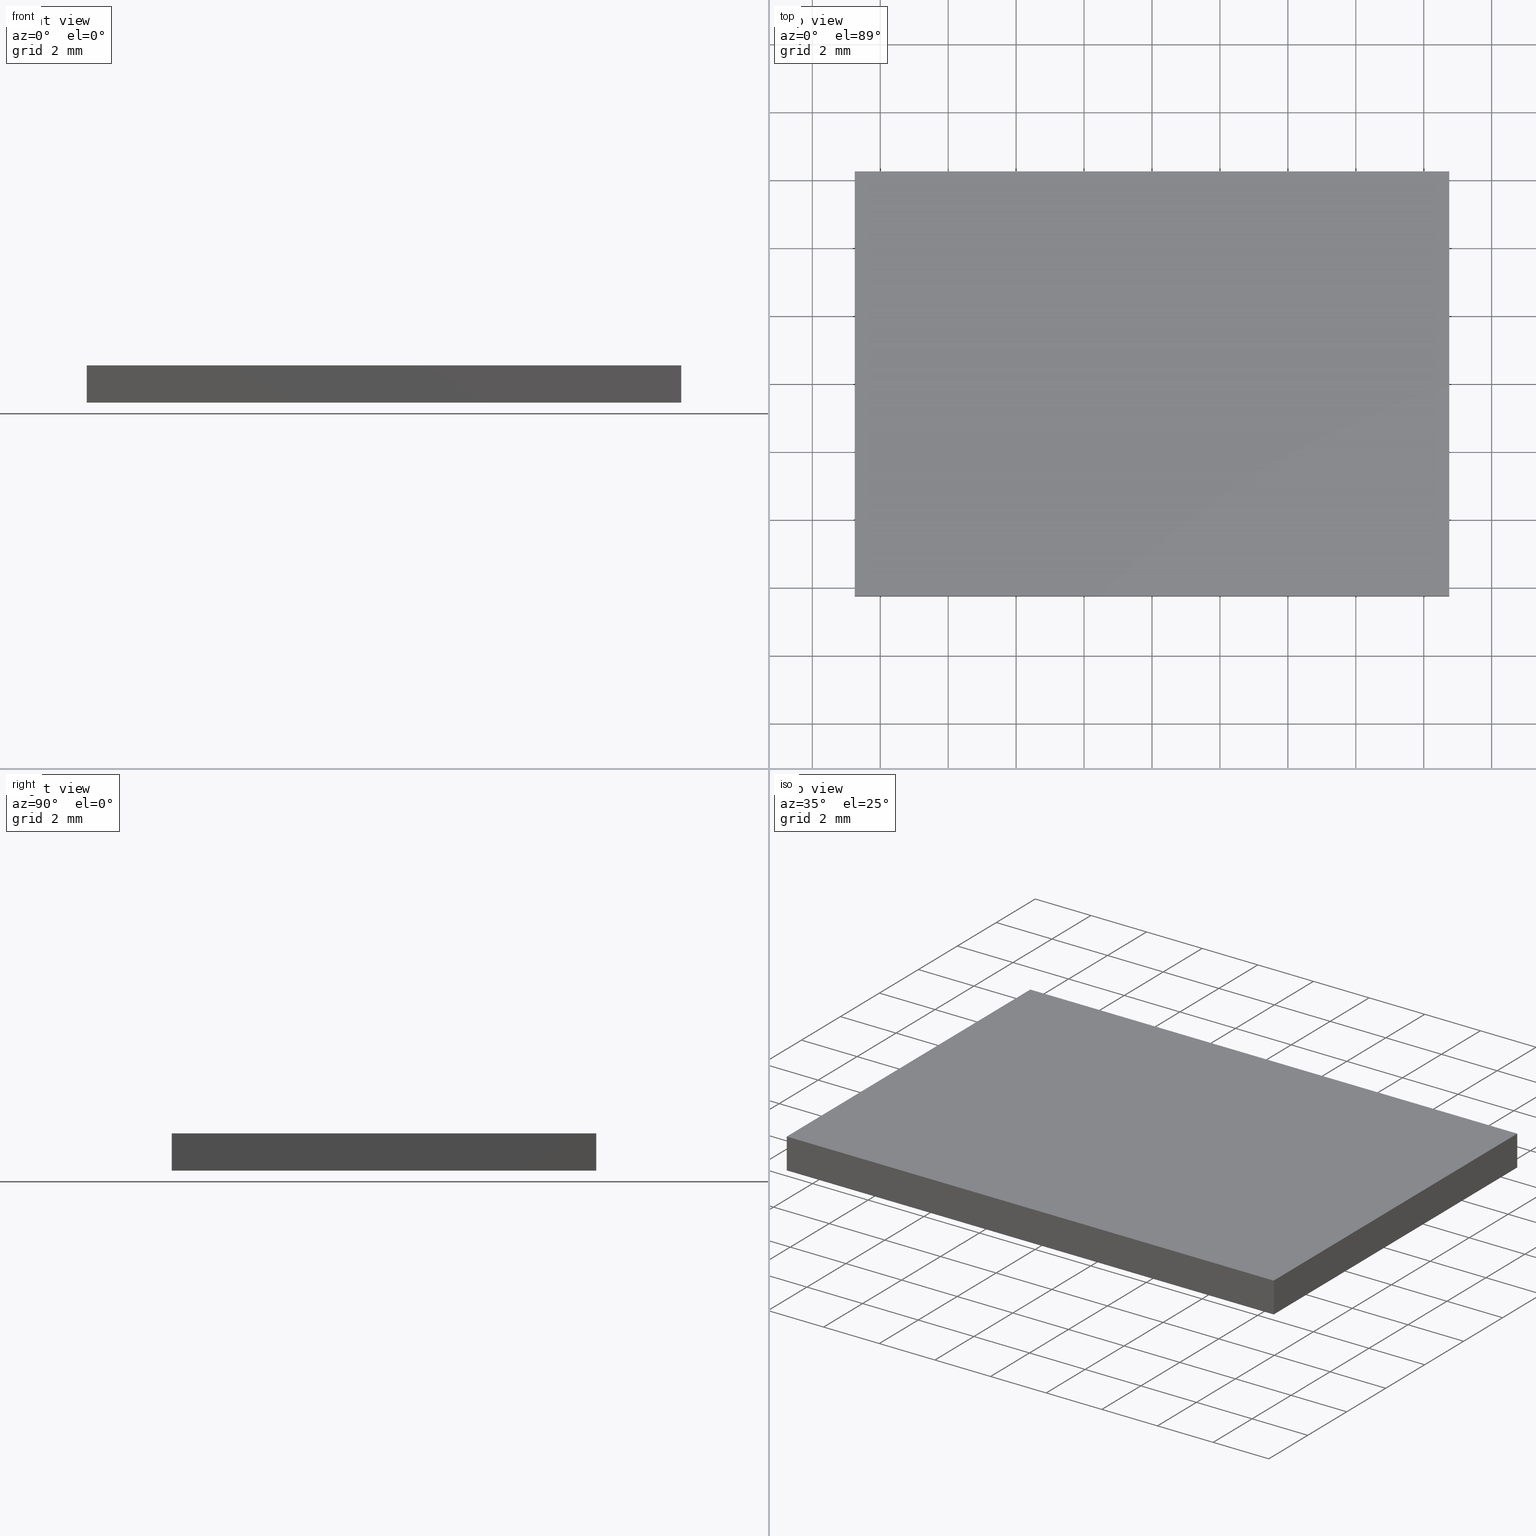
[diagram: canonical four-view strip — front | top / right | iso, engineering-drawing reading convention]
A machine part, canonical four-view strip (front | top / right | iso — engineering-drawing reading convention). The complete STEP part file that produces these views, byte-faithful:
ISO-10303-21;
HEADER;
FILE_DESCRIPTION (( 'STEP AP203' ),
    '1' );
FILE_NAME ('348502.STEP',
    '2019-07-31T07:06:59',
    ( '' ),
    ( '' ),
    'SwSTEP 2.0',
    'SolidWorks 2016',
    '' );
FILE_SCHEMA (( 'CONFIG_CONTROL_DESIGN' ));
ENDSEC;

DATA;
#1 = LOCAL_TIME ( 15, 6, 59.00000000000000000, #28 ) ;
#2 = APPLICATION_CONTEXT ( 'configuration controlled 3d designs of mechanical parts and assemblies' ) ;
#3 = CALENDAR_DATE ( 2019, 31, 7 ) ;
#4 = ADVANCED_BREP_SHAPE_REPRESENTATION ( '348502', ( #142, #102 ), #283 ) ;
#5 = PERSON_AND_ORGANIZATION ( #170, #246 ) ;
#6 = EDGE_LOOP ( 'NONE', ( #122, #305, #184, #26 ) ) ;
#7 = PRODUCT_DEFINITION_SHAPE ( 'NONE', 'NONE',  #271 ) ;
#8 = CC_DESIGN_PERSON_AND_ORGANIZATION_ASSIGNMENT ( #222, #51, ( #202 ) ) ;
#9 = ADVANCED_FACE ( 'NONE', ( #265 ), #219, .F. ) ;
#10 = APPROVAL_DATE_TIME ( #190, #103 ) ;
#11 = CARTESIAN_POINT ( 'NONE',  ( -8.750000000000000000, -6.249999999999999100, 0.0000000000000000000 ) ) ;
#12 = CC_DESIGN_PERSON_AND_ORGANIZATION_ASSIGNMENT ( #5, #118, ( #271 ) ) ;
#13 = DIRECTION ( 'NONE',  ( 0.0000000000000000000, 1.000000000000000000, 0.0000000000000000000 ) ) ;
#14 = SHAPE_DEFINITION_REPRESENTATION ( #188, #4 ) ;
#15 = FACE_OUTER_BOUND ( 'NONE', #6, .T. ) ;
#16 = CC_DESIGN_SECURITY_CLASSIFICATION ( #202, ( #111 ) ) ;
#17 = CARTESIAN_POINT ( 'NONE',  ( -8.750000000000000000, -6.249999999999999100, 1.100000000000000100 ) ) ;
#18 = ORIENTED_EDGE ( 'NONE', *, *, #124, .T. ) ;
#19 = DIRECTION ( 'NONE',  ( 0.0000000000000000000, 0.0000000000000000000, -1.000000000000000000 ) ) ;
#20 = CARTESIAN_POINT ( 'NONE',  ( 8.750000000000000000, -6.249999999999999100, 1.100000000000000100 ) ) ;
#21 = LOCAL_TIME ( 15, 6, 59.00000000000000000, #31 ) ;
#22 = VERTEX_POINT ( 'NONE', #11 ) ;
#23 = APPLICATION_CONTEXT ( 'configuration controlled 3d designs of mechanical parts and assemblies' ) ;
#24 = CC_DESIGN_APPROVAL ( #125, ( #111 ) ) ;
#25 = VECTOR ( 'NONE', #280, 1000.000000000000000 ) ;
#26 = ORIENTED_EDGE ( 'NONE', *, *, #237, .T. ) ;
#27 = SECURITY_CLASSIFICATION_LEVEL ( 'unclassified' ) ;
#28 = COORDINATED_UNIVERSAL_TIME_OFFSET ( 8, 0, .AHEAD. ) ;
#29 = PERSON_AND_ORGANIZATION ( #170, #246 ) ;
#30 = DIRECTION ( 'NONE',  ( -1.000000000000000000, -0.0000000000000000000, -0.0000000000000000000 ) ) ;
#31 = COORDINATED_UNIVERSAL_TIME_OFFSET ( 8, 0, .AHEAD. ) ;
#32 = UNCERTAINTY_MEASURE_WITH_UNIT (LENGTH_MEASURE( 1.000000000000000100E-005 ), #49, 'distance_accuracy_value', 'NONE');
#33 = VECTOR ( 'NONE', #161, 1000.000000000000000 ) ;
#34 = ORIENTED_EDGE ( 'NONE', *, *, #290, .T. ) ;
#35 = CC_DESIGN_PERSON_AND_ORGANIZATION_ASSIGNMENT ( #65, #282, ( #287 ) ) ;
#36 = AXIS2_PLACEMENT_3D ( 'NONE', #17, #164, #180 ) ;
#37 = APPROVAL_DATE_TIME ( #45, #175 ) ;
#38 = PERSON_AND_ORGANIZATION ( #170, #246 ) ;
#39 = DIRECTION ( 'NONE',  ( -1.000000000000000000, 0.0000000000000000000, 0.0000000000000000000 ) ) ;
#40 = DIRECTION ( 'NONE',  ( 1.000000000000000000, 0.0000000000000000000, 0.0000000000000000000 ) ) ;
#41 = DIRECTION ( 'NONE',  ( -1.000000000000000000, 0.0000000000000000000, -0.0000000000000000000 ) ) ;
#42 = ORIENTED_EDGE ( 'NONE', *, *, #106, .F. ) ;
#43 = AXIS2_PLACEMENT_3D ( 'NONE', #194, #108, #41 ) ;
#44 =( NAMED_UNIT ( * ) PLANE_ANGLE_UNIT ( ) SI_UNIT ( $, .RADIAN. ) );
#45 = DATE_AND_TIME ( #71, #182 ) ;
#46 = EDGE_CURVE ( 'NONE', #99, #296, #201, .T. ) ;
#47 = DIRECTION ( 'NONE',  ( -0.0000000000000000000, -0.0000000000000000000, -1.000000000000000000 ) ) ;
#48 = ORIENTED_EDGE ( 'NONE', *, *, #124, .F. ) ;
#49 =( LENGTH_UNIT ( ) NAMED_UNIT ( * ) SI_UNIT ( .MILLI., .METRE. ) );
#50 = CALENDAR_DATE ( 2019, 31, 7 ) ;
#51 = PERSON_AND_ORGANIZATION_ROLE ( 'classification_officer' ) ;
#52 = APPROVAL_STATUS ( 'not_yet_approved' ) ;
#53 = APPROVAL_ROLE ( '' ) ;
#54 = CALENDAR_DATE ( 2019, 31, 7 ) ;
#55 = CLOSED_SHELL ( 'NONE', ( #9, #76, #226, #248, #297, #85 ) ) ;
#56 = EDGE_CURVE ( 'NONE', #22, #99, #220, .T. ) ;
#57 = APPROVAL_PERSON_ORGANIZATION ( #117, #75, #171 ) ;
#58 = AXIS2_PLACEMENT_3D ( 'NONE', #183, #67, #121 ) ;
#59 = DATE_AND_TIME ( #54, #1 ) ;
#60 = APPROVAL_DATE_TIME ( #300, #302 ) ;
#61 = CARTESIAN_POINT ( 'NONE',  ( 8.750000000000000000, -6.249999999999999100, 0.0000000000000000000 ) ) ;
#62 = PLANE ( 'NONE',  #36 ) ;
#63 = LINE ( 'NONE', #78, #126 ) ;
#64 = DIRECTION ( 'NONE',  ( 1.000000000000000000, 0.0000000000000000000, 0.0000000000000000000 ) ) ;
#65 = PERSON_AND_ORGANIZATION ( #170, #246 ) ;
#66 = EDGE_CURVE ( 'NONE', #249, #173, #63, .T. ) ;
#67 = DIRECTION ( 'NONE',  ( 0.0000000000000000000, 0.0000000000000000000, 1.000000000000000000 ) ) ;
#68 = SECURITY_CLASSIFICATION_LEVEL ( 'unclassified' ) ;
#69 = APPROVAL_ROLE ( '' ) ;
#70 = EDGE_CURVE ( 'NONE', #249, #296, #236, .T. ) ;
#71 = CALENDAR_DATE ( 2019, 31, 7 ) ;
#72 = PERSON_AND_ORGANIZATION ( #170, #246 ) ;
#73 = CALENDAR_DATE ( 2019, 31, 7 ) ;
#74 = VECTOR ( 'NONE', #80, 1000.000000000000000 ) ;
#75 = APPROVAL ( #214, 'δָ��' ) ;
#76 = ADVANCED_FACE ( 'NONE', ( #261 ), #299, .F. ) ;
#77 = COORDINATED_UNIVERSAL_TIME_OFFSET ( 8, 0, .AHEAD. ) ;
#78 = CARTESIAN_POINT ( 'NONE',  ( -8.750000000000000000, 6.250000000000000900, 1.100000000000000100 ) ) ;
#79 = DESIGN_CONTEXT ( 'detailed design', #289, 'design' ) ;
#80 = DIRECTION ( 'NONE',  ( -0.0000000000000000000, -1.000000000000000000, -0.0000000000000000000 ) ) ;
#81 = CC_DESIGN_SECURITY_CLASSIFICATION ( #240, ( #287 ) ) ;
#82 = PERSON_AND_ORGANIZATION ( #170, #246 ) ;
#83 = CARTESIAN_POINT ( 'NONE',  ( -8.750000000000000000, -6.249999999999999100, 1.100000000000000100 ) ) ;
#84 = ORIENTED_EDGE ( 'NONE', *, *, #66, .T. ) ;
#85 = ADVANCED_FACE ( 'NONE', ( #233 ), #159, .T. ) ;
#86 = EDGE_CURVE ( 'NONE', #173, #101, #267, .T. ) ;
#87 = CALENDAR_DATE ( 2019, 31, 7 ) ;
#88 = CARTESIAN_POINT ( 'NONE',  ( 0.0000000000000000000, 0.0000000000000000000, 0.0000000000000000000 ) ) ;
#89 = VECTOR ( 'NONE', #47, 1000.000000000000000 ) ;
#90 = ORIENTED_EDGE ( 'NONE', *, *, #56, .T. ) ;
#91 = CARTESIAN_POINT ( 'NONE',  ( 8.750000000000000000, -6.249999999999999100, 0.0000000000000000000 ) ) ;
#92 = MECHANICAL_CONTEXT ( 'NONE', #23, 'mechanical' ) ;
#93 = PERSON_AND_ORGANIZATION_ROLE ( 'design_supplier' ) ;
#94 = COORDINATED_UNIVERSAL_TIME_OFFSET ( 8, 0, .AHEAD. ) ;
#95 = LINE ( 'NONE', #138, #33 ) ;
#96 = ORIENTED_EDGE ( 'NONE', *, *, #46, .F. ) ;
#97 = APPROVAL_STATUS ( 'not_yet_approved' ) ;
#98 = APPROVAL_PERSON_ORGANIZATION ( #104, #175, #263 ) ;
#99 = VERTEX_POINT ( 'NONE', #91 ) ;
#100 = CC_DESIGN_APPROVAL ( #314, ( #240 ) ) ;
#101 = VERTEX_POINT ( 'NONE', #244 ) ;
#102 = AXIS2_PLACEMENT_3D ( 'NONE', #88, #308, #120 ) ;
#103 = APPROVAL ( #312, 'δָ��' ) ;
#104 = PERSON_AND_ORGANIZATION ( #170, #246 ) ;
#105 = EDGE_LOOP ( 'NONE', ( #134, #223, #160, #18 ) ) ;
#106 = EDGE_CURVE ( 'NONE', #221, #22, #212, .T. ) ;
#107 = CALENDAR_DATE ( 2019, 31, 7 ) ;
#108 = DIRECTION ( 'NONE',  ( 0.0000000000000000000, 0.0000000000000000000, -1.000000000000000000 ) ) ;
#109 = DIRECTION ( 'NONE',  ( -0.0000000000000000000, -0.0000000000000000000, -1.000000000000000000 ) ) ;
#110 = DIRECTION ( 'NONE',  ( 0.0000000000000000000, 1.000000000000000000, 0.0000000000000000000 ) ) ;
#111 = PRODUCT_DEFINITION_FORMATION_WITH_SPECIFIED_SOURCE ( '�κ�', '', #119, .NOT_KNOWN. ) ;
#112 = CARTESIAN_POINT ( 'NONE',  ( -8.750000000000000000, 6.250000000000000900, 0.0000000000000000000 ) ) ;
#113 = CALENDAR_DATE ( 2019, 31, 7 ) ;
#114 = ORIENTED_EDGE ( 'NONE', *, *, #86, .T. ) ;
#115 = DIRECTION ( 'NONE',  ( -1.000000000000000000, 0.0000000000000000000, -0.0000000000000000000 ) ) ;
#116 = CARTESIAN_POINT ( 'NONE',  ( -8.750000000000000000, -6.249999999999999100, 1.100000000000000100 ) ) ;
#117 = PERSON_AND_ORGANIZATION ( #170, #246 ) ;
#118 = PERSON_AND_ORGANIZATION_ROLE ( 'creator' ) ;
#119 = PRODUCT ( '348502', '348502', '', ( #92 ) ) ;
#120 = DIRECTION ( 'NONE',  ( 1.000000000000000000, 0.0000000000000000000, 0.0000000000000000000 ) ) ;
#121 = DIRECTION ( 'NONE',  ( 1.000000000000000000, 0.0000000000000000000, 0.0000000000000000000 ) ) ;
#122 = ORIENTED_EDGE ( 'NONE', *, *, #106, .T. ) ;
#123 = CC_DESIGN_PERSON_AND_ORGANIZATION_ASSIGNMENT ( #207, #93, ( #111 ) ) ;
#124 = EDGE_CURVE ( 'NONE', #165, #99, #131, .T. ) ;
#125 = APPROVAL ( #167, 'δָ��' ) ;
#126 = VECTOR ( 'NONE', #30, 1000.000000000000000 ) ;
#127 = CARTESIAN_POINT ( 'NONE',  ( 8.750000000000000000, -6.249999999999999100, 1.100000000000000100 ) ) ;
#128 = CC_DESIGN_DATE_AND_TIME_ASSIGNMENT ( #147, #210, ( #271 ) ) ;
#129 = LINE ( 'NONE', #135, #157 ) ;
#130 = CALENDAR_DATE ( 2019, 31, 7 ) ;
#131 = LINE ( 'NONE', #253, #25 ) ;
#132 = CARTESIAN_POINT ( 'NONE',  ( -8.750000000000000000, -6.249999999999999100, 0.0000000000000000000 ) ) ;
#133 = LOCAL_TIME ( 15, 6, 59.00000000000000000, #94 ) ;
#134 = ORIENTED_EDGE ( 'NONE', *, *, #46, .T. ) ;
#135 = CARTESIAN_POINT ( 'NONE',  ( -8.750000000000000000, -6.249999999999999100, 1.100000000000000100 ) ) ;
#136 = DATE_AND_TIME ( #113, #264 ) ;
#137 = PERSON_AND_ORGANIZATION ( #170, #246 ) ;
#138 = CARTESIAN_POINT ( 'NONE',  ( -8.750000000000000000, -6.249999999999999100, 1.100000000000000100 ) ) ;
#139 = VECTOR ( 'NONE', #13, 1000.000000000000000 ) ;
#140 = PRODUCT_DEFINITION ( 'δ֪', '', #111, #255 ) ;
#141 = PERSON_AND_ORGANIZATION_ROLE ( 'design_owner' ) ;
#142 = MANIFOLD_SOLID_BREP ( '͹̨-����1', #55 ) ;
#143 = APPROVAL_STATUS ( 'not_yet_approved' ) ;
#144 = LOCAL_TIME ( 15, 6, 59.00000000000000000, #215 ) ;
#145 = CC_DESIGN_DATE_AND_TIME_ASSIGNMENT ( #243, #315, ( #240 ) ) ;
#146 = PERSON_AND_ORGANIZATION_ROLE ( 'classification_officer' ) ;
#147 = DATE_AND_TIME ( #130, #152 ) ;
#148 = EDGE_LOOP ( 'NONE', ( #96, #278, #42, #192 ) ) ;
#149 = LINE ( 'NONE', #276, #89 ) ;
#150 = EDGE_LOOP ( 'NONE', ( #213, #84, #114, #262 ) ) ;
#151 = COORDINATED_UNIVERSAL_TIME_OFFSET ( 8, 0, .AHEAD. ) ;
#152 = LOCAL_TIME ( 15, 6, 59.00000000000000000, #211 ) ;
#153 = EDGE_CURVE ( 'NONE', #101, #22, #95, .T. ) ;
#154 = DIRECTION ( 'NONE',  ( 0.0000000000000000000, 0.0000000000000000000, 1.000000000000000000 ) ) ;
#155 = CC_DESIGN_PERSON_AND_ORGANIZATION_ASSIGNMENT ( #199, #260, ( #140 ) ) ;
#156 = CARTESIAN_POINT ( 'NONE',  ( -8.750000000000000000, 6.250000000000000900, 1.100000000000000100 ) ) ;
#157 = VECTOR ( 'NONE', #64, 1000.000000000000000 ) ;
#158 = VECTOR ( 'NONE', #109, 1000.000000000000000 ) ;
#159 = PLANE ( 'NONE',  #43 ) ;
#160 = ORIENTED_EDGE ( 'NONE', *, *, #229, .F. ) ;
#161 = DIRECTION ( 'NONE',  ( -0.0000000000000000000, -0.0000000000000000000, -1.000000000000000000 ) ) ;
#162 = DIRECTION ( 'NONE',  ( -1.000000000000000000, -0.0000000000000000000, -0.0000000000000000000 ) ) ;
#163 = COORDINATED_UNIVERSAL_TIME_OFFSET ( 8, 0, .AHEAD. ) ;
#164 = DIRECTION ( 'NONE',  ( 1.000000000000000000, 0.0000000000000000000, 0.0000000000000000000 ) ) ;
#165 = VERTEX_POINT ( 'NONE', #20 ) ;
#166 = APPLICATION_PROTOCOL_DEFINITION ( 'international standard', 'config_control_design', 1994, #189 ) ;
#167 = APPROVAL_STATUS ( 'not_yet_approved' ) ;
#168 = CC_DESIGN_APPROVAL ( #75, ( #140 ) ) ;
#169 = APPLICATION_PROTOCOL_DEFINITION ( 'international standard', 'config_control_design', 1994, #23 ) ;
#170 = PERSON ( 'δָ��', 'δָ��', 'δָ��', ('δָ��'), ('δָ��'), ('δָ��') ) ;
#171 = APPROVAL_ROLE ( '' ) ;
#172 = APPROVAL_DATE_TIME ( #291, #75 ) ;
#173 = VERTEX_POINT ( 'NONE', #307 ) ;
#174 = CC_DESIGN_PERSON_AND_ORGANIZATION_ASSIGNMENT ( #259, #285, ( #287 ) ) ;
#175 = APPROVAL ( #97, 'δָ��' ) ;
#176 = LOCAL_TIME ( 15, 6, 59.00000000000000000, #232 ) ;
#177 = PERSON_AND_ORGANIZATION ( #170, #246 ) ;
#178 = DIRECTION ( 'NONE',  ( 0.0000000000000000000, -1.000000000000000000, 0.0000000000000000000 ) ) ;
#179 = CC_DESIGN_DATE_AND_TIME_ASSIGNMENT ( #235, #256, ( #202 ) ) ;
#180 = DIRECTION ( 'NONE',  ( 0.0000000000000000000, 0.0000000000000000000, -1.000000000000000000 ) ) ;
#181 = CARTESIAN_POINT ( 'NONE',  ( 8.750000000000000000, 6.250000000000000900, 1.100000000000000100 ) ) ;
#182 = LOCAL_TIME ( 15, 6, 59.00000000000000000, #241 ) ;
#183 = CARTESIAN_POINT ( 'NONE',  ( 0.0000000000000000000, 0.0000000000000000000, 0.0000000000000000000 ) ) ;
#184 = ORIENTED_EDGE ( 'NONE', *, *, #86, .F. ) ;
#185 = VECTOR ( 'NONE', #162, 1000.000000000000000 ) ;
#186 = VECTOR ( 'NONE', #40, 1000.000000000000000 ) ;
#187 = CC_DESIGN_PERSON_AND_ORGANIZATION_ASSIGNMENT ( #137, #141, ( #119 ) ) ;
#188 = PRODUCT_DEFINITION_SHAPE ( 'NONE', 'NONE',  #140 ) ;
#189 = APPLICATION_CONTEXT ( 'configuration controlled 3d designs of mechanical parts and assemblies' ) ;
#190 = DATE_AND_TIME ( #193, #133 ) ;
#191 = MECHANICAL_CONTEXT ( 'NONE', #189, 'mechanical' ) ;
#192 = ORIENTED_EDGE ( 'NONE', *, *, #290, .F. ) ;
#193 = CALENDAR_DATE ( 2019, 31, 7 ) ;
#194 = CARTESIAN_POINT ( 'NONE',  ( 0.0000000000000000000, 0.0000000000000000000, 0.0000000000000000000 ) ) ;
#195 = PERSON_AND_ORGANIZATION ( #170, #246 ) ;
#196 = CC_DESIGN_PERSON_AND_ORGANIZATION_ASSIGNMENT ( #38, #281, ( #288 ) ) ;
#197 = FACE_OUTER_BOUND ( 'NONE', #198, .T. ) ;
#198 = EDGE_LOOP ( 'NONE', ( #90, #48, #238, #268 ) ) ;
#199 = PERSON_AND_ORGANIZATION ( #170, #246 ) ;
#200 = APPROVAL_PERSON_ORGANIZATION ( #72, #103, #53 ) ;
#201 = LINE ( 'NONE', #61, #139 ) ;
#202 = SECURITY_CLASSIFICATION ( '', '', #27 ) ;
#203 = APPROVAL_DATE_TIME ( #239, #314 ) ;
#204 = CARTESIAN_POINT ( 'NONE',  ( 8.750000000000000000, 6.250000000000000900, 0.0000000000000000000 ) ) ;
#205 =( NAMED_UNIT ( * ) SI_UNIT ( $, .STERADIAN. ) SOLID_ANGLE_UNIT ( ) );
#206 = DIRECTION ( 'NONE',  ( 0.0000000000000000000, -0.0000000000000000000, 1.000000000000000000 ) ) ;
#207 = PERSON_AND_ORGANIZATION ( #170, #246 ) ;
#208 = FACE_OUTER_BOUND ( 'NONE', #150, .T. ) ;
#209 = ORIENTED_EDGE ( 'NONE', *, *, #70, .T. ) ;
#210 = DATE_TIME_ROLE ( 'creation_date' ) ;
#211 = COORDINATED_UNIVERSAL_TIME_OFFSET ( 8, 0, .AHEAD. ) ;
#212 = LINE ( 'NONE', #272, #74 ) ;
#213 = ORIENTED_EDGE ( 'NONE', *, *, #229, .T. ) ;
#214 = APPROVAL_STATUS ( 'not_yet_approved' ) ;
#215 = COORDINATED_UNIVERSAL_TIME_OFFSET ( 8, 0, .AHEAD. ) ;
#216 = ORIENTED_EDGE ( 'NONE', *, *, #66, .F. ) ;
#217 = AXIS2_PLACEMENT_3D ( 'NONE', #156, #178, #224 ) ;
#218 = CC_DESIGN_APPROVAL ( #175, ( #202 ) ) ;
#219 = PLANE ( 'NONE',  #298 ) ;
#220 = LINE ( 'NONE', #132, #186 ) ;
#221 = VERTEX_POINT ( 'NONE', #112 ) ;
#222 = PERSON_AND_ORGANIZATION ( #170, #246 ) ;
#223 = ORIENTED_EDGE ( 'NONE', *, *, #70, .F. ) ;
#224 = DIRECTION ( 'NONE',  ( 0.0000000000000000000, -0.0000000000000000000, -1.000000000000000000 ) ) ;
#225 = LINE ( 'NONE', #251, #273 ) ;
#226 = ADVANCED_FACE ( 'NONE', ( #15 ), #62, .F. ) ;
#227 = PERSON_AND_ORGANIZATION ( #170, #246 ) ;
#228 = CARTESIAN_POINT ( 'NONE',  ( -8.750000000000000000, 6.250000000000000900, 0.0000000000000000000 ) ) ;
#229 = EDGE_CURVE ( 'NONE', #165, #249, #225, .T. ) ;
#230 = APPROVAL_ROLE ( '' ) ;
#231 = PRODUCT_RELATED_PRODUCT_CATEGORY ( 'detail', '', ( #119 ) ) ;
#232 = COORDINATED_UNIVERSAL_TIME_OFFSET ( 8, 0, .AHEAD. ) ;
#233 = FACE_OUTER_BOUND ( 'NONE', #148, .T. ) ;
#234 = PERSON_AND_ORGANIZATION_ROLE ( 'creator' ) ;
#235 = DATE_AND_TIME ( #87, #269 ) ;
#236 = LINE ( 'NONE', #245, #158 ) ;
#237 = EDGE_CURVE ( 'NONE', #173, #221, #149, .T. ) ;
#238 = ORIENTED_EDGE ( 'NONE', *, *, #279, .F. ) ;
#239 = DATE_AND_TIME ( #107, #310 ) ;
#240 = SECURITY_CLASSIFICATION ( '', '', #68 ) ;
#241 = COORDINATED_UNIVERSAL_TIME_OFFSET ( 8, 0, .AHEAD. ) ;
#242 = CC_DESIGN_APPROVAL ( #103, ( #287 ) ) ;
#243 = DATE_AND_TIME ( #3, #21 ) ;
#244 = CARTESIAN_POINT ( 'NONE',  ( -8.750000000000000000, -6.249999999999999100, 1.100000000000000100 ) ) ;
#245 = CARTESIAN_POINT ( 'NONE',  ( 8.750000000000000000, 6.250000000000000900, 1.100000000000000100 ) ) ;
#246 = ORGANIZATION ( 'δָ��', 'δָ��', '' ) ;
#247 = CC_DESIGN_APPROVAL ( #302, ( #271 ) ) ;
#248 = ADVANCED_FACE ( 'NONE', ( #197 ), #277, .F. ) ;
#249 = VERTEX_POINT ( 'NONE', #181 ) ;
#250 = CC_DESIGN_DATE_AND_TIME_ASSIGNMENT ( #59, #254, ( #140 ) ) ;
#251 = CARTESIAN_POINT ( 'NONE',  ( 8.750000000000000000, -6.249999999999999100, 1.100000000000000100 ) ) ;
#252 = PLANE ( 'NONE',  #301 ) ;
#253 = CARTESIAN_POINT ( 'NONE',  ( 8.750000000000000000, -6.249999999999999100, 1.100000000000000100 ) ) ;
#254 = DATE_TIME_ROLE ( 'creation_date' ) ;
#255 = DESIGN_CONTEXT ( 'detailed design', #2, 'design' ) ;
#256 = DATE_TIME_ROLE ( 'classification_date' ) ;
#257 = APPLICATION_PROTOCOL_DEFINITION ( 'international standard', 'config_control_design', 1994, #289 ) ;
#258 = PRODUCT_RELATED_PRODUCT_CATEGORY ( 'detail', '', ( #288 ) ) ;
#259 = PERSON_AND_ORGANIZATION ( #170, #246 ) ;
#260 = PERSON_AND_ORGANIZATION_ROLE ( 'creator' ) ;
#261 = FACE_OUTER_BOUND ( 'NONE', #284, .T. ) ;
#262 = ORIENTED_EDGE ( 'NONE', *, *, #279, .T. ) ;
#263 = APPROVAL_ROLE ( '' ) ;
#264 = LOCAL_TIME ( 15, 6, 59.00000000000000000, #151 ) ;
#265 = FACE_OUTER_BOUND ( 'NONE', #105, .T. ) ;
#266 = APPROVAL_PERSON_ORGANIZATION ( #195, #302, #286 ) ;
#267 = LINE ( 'NONE', #116, #311 ) ;
#268 = ORIENTED_EDGE ( 'NONE', *, *, #153, .T. ) ;
#269 = LOCAL_TIME ( 15, 6, 59.00000000000000000, #163 ) ;
#270 = APPROVAL_PERSON_ORGANIZATION ( #29, #314, #230 ) ;
#271 = PRODUCT_DEFINITION ( 'δ֪', '', #287, #79 ) ;
#272 = CARTESIAN_POINT ( 'NONE',  ( -8.750000000000000000, -6.249999999999999100, 0.0000000000000000000 ) ) ;
#273 = VECTOR ( 'NONE', #110, 1000.000000000000000 ) ;
#274 = ORIENTED_EDGE ( 'NONE', *, *, #237, .F. ) ;
#275 = DIRECTION ( 'NONE',  ( -0.0000000000000000000, -1.000000000000000000, -0.0000000000000000000 ) ) ;
#276 = CARTESIAN_POINT ( 'NONE',  ( -8.750000000000000000, 6.250000000000000900, 1.100000000000000100 ) ) ;
#277 = PLANE ( 'NONE',  #294 ) ;
#278 = ORIENTED_EDGE ( 'NONE', *, *, #56, .F. ) ;
#279 = EDGE_CURVE ( 'NONE', #101, #165, #129, .T. ) ;
#280 = DIRECTION ( 'NONE',  ( -0.0000000000000000000, -0.0000000000000000000, -1.000000000000000000 ) ) ;
#281 = PERSON_AND_ORGANIZATION_ROLE ( 'design_owner' ) ;
#282 = PERSON_AND_ORGANIZATION_ROLE ( 'creator' ) ;
#283 =( GEOMETRIC_REPRESENTATION_CONTEXT ( 3 ) GLOBAL_UNCERTAINTY_ASSIGNED_CONTEXT ( ( #32 ) ) GLOBAL_UNIT_ASSIGNED_CONTEXT ( ( #49, #44, #205 ) ) REPRESENTATION_CONTEXT ( 'NONE', 'WORKASPACE' ) );
#284 = EDGE_LOOP ( 'NONE', ( #34, #274, #216, #209 ) ) ;
#285 = PERSON_AND_ORGANIZATION_ROLE ( 'design_supplier' ) ;
#286 = APPROVAL_ROLE ( '' ) ;
#287 = PRODUCT_DEFINITION_FORMATION_WITH_SPECIFIED_SOURCE ( '�κ�', '', #288, .NOT_KNOWN. ) ;
#288 = PRODUCT ( '348502', '348502', '', ( #191 ) ) ;
#289 = APPLICATION_CONTEXT ( 'configuration controlled 3d designs of mechanical parts and assemblies' ) ;
#290 = EDGE_CURVE ( 'NONE', #296, #221, #292, .T. ) ;
#291 = DATE_AND_TIME ( #50, #176 ) ;
#292 = LINE ( 'NONE', #228, #185 ) ;
#293 = CC_DESIGN_PERSON_AND_ORGANIZATION_ASSIGNMENT ( #82, #146, ( #240 ) ) ;
#294 = AXIS2_PLACEMENT_3D ( 'NONE', #83, #309, #206 ) ;
#295 = APPROVAL_DATE_TIME ( #136, #125 ) ;
#296 = VERTEX_POINT ( 'NONE', #204 ) ;
#297 = ADVANCED_FACE ( 'NONE', ( #208 ), #252, .F. ) ;
#298 = AXIS2_PLACEMENT_3D ( 'NONE', #127, #39, #154 ) ;
#299 = PLANE ( 'NONE',  #217 ) ;
#300 = DATE_AND_TIME ( #73, #144 ) ;
#301 = AXIS2_PLACEMENT_3D ( 'NONE', #304, #19, #115 ) ;
#302 = APPROVAL ( #143, 'δָ��' ) ;
#303 = APPROVAL_PERSON_ORGANIZATION ( #177, #125, #69 ) ;
#304 = CARTESIAN_POINT ( 'NONE',  ( 0.0000000000000000000, 0.0000000000000000000, 1.100000000000000100 ) ) ;
#305 = ORIENTED_EDGE ( 'NONE', *, *, #153, .F. ) ;
#306 = CC_DESIGN_PERSON_AND_ORGANIZATION_ASSIGNMENT ( #227, #234, ( #111 ) ) ;
#307 = CARTESIAN_POINT ( 'NONE',  ( -8.750000000000000000, 6.250000000000000900, 1.100000000000000100 ) ) ;
#308 = DIRECTION ( 'NONE',  ( 0.0000000000000000000, 0.0000000000000000000, 1.000000000000000000 ) ) ;
#309 = DIRECTION ( 'NONE',  ( 0.0000000000000000000, 1.000000000000000000, 0.0000000000000000000 ) ) ;
#310 = LOCAL_TIME ( 15, 6, 59.00000000000000000, #77 ) ;
#311 = VECTOR ( 'NONE', #275, 1000.000000000000000 ) ;
#312 = APPROVAL_STATUS ( 'not_yet_approved' ) ;
#313 = APPLICATION_PROTOCOL_DEFINITION ( 'international standard', 'config_control_design', 1994, #2 ) ;
#314 = APPROVAL ( #52, 'δָ��' ) ;
#315 = DATE_TIME_ROLE ( 'classification_date' ) ;
ENDSEC;
END-ISO-10303-21;
